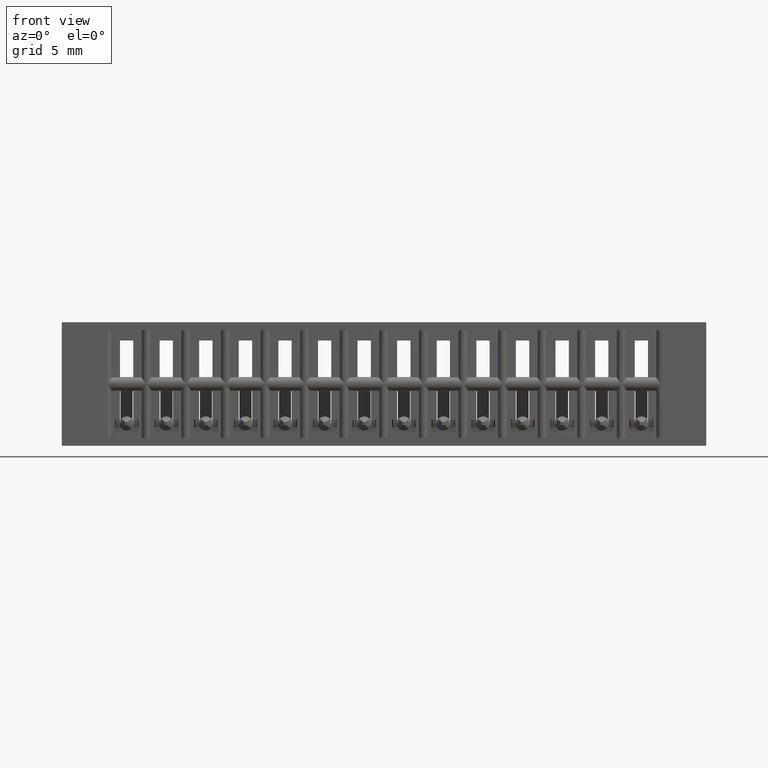
[diagram: clean part render]
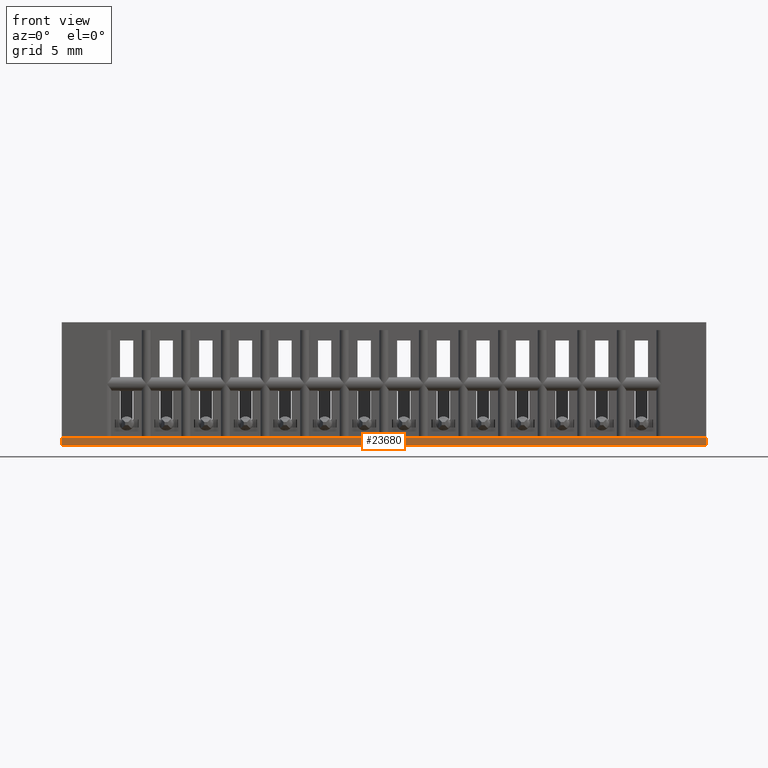
[diagram: same view with one face highlighted and labeled with its STEP entity id]
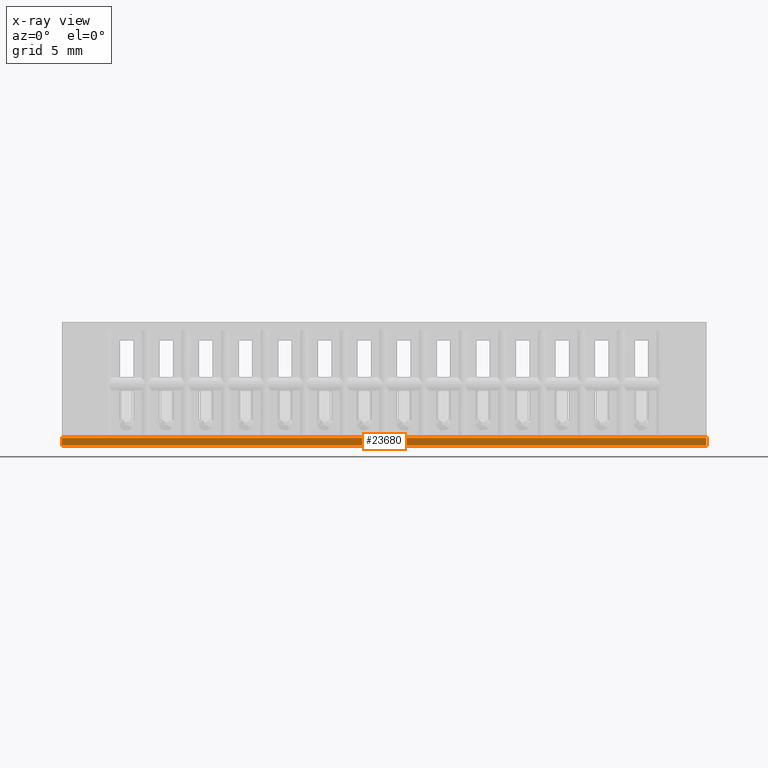
[diagram: x-ray of the same camera — body ghosted, the highlighted face saturated]
A machine part, front view. The second image highlights one B-rep face of the part: STEP entity #23680.
The next image is the same camera in x-ray: the body ghosted, the highlighted face saturated — about 0% of this face is hidden behind the body in this view.
In plain terms, the highlighted planar face has unit normal (0, 1, 0).
Its self-contained STEP definition (entity closure, byte-faithful):
#213 = CARTESIAN_POINT ( 'NONE',  ( 2.035000000000000142, 0.1000000000000000056, -0.3900000000000000133 ) ) ;
#483 = CARTESIAN_POINT ( 'NONE',  ( 2.035000000000000142, 0.1000000000000000056, -0.3649999999999999911 ) ) ;
#1085 = CARTESIAN_POINT ( 'NONE',  ( 2.035000000000000142, 0.1000000000000000056, -0.3900000000000000133 ) ) ;
#1111 = DIRECTION ( 'NONE',  ( 0.0000000000000000000, 1.000000000000000000, 0.0000000000000000000 ) ) ;
#4807 = PLANE ( 'NONE',  #24445 ) ;
#4816 = LINE ( 'NONE', #20304, #9785 ) ;
#6144 = EDGE_LOOP ( 'NONE', ( #23962, #9619, #15190, #15333 ) ) ;
#6340 = DIRECTION ( 'NONE',  ( 0.0000000000000000000, -0.0000000000000000000, 1.000000000000000000 ) ) ;
#8000 = CARTESIAN_POINT ( 'NONE',  ( 0.0000000000000000000, 0.1000000000000000056, -0.3649999999999999911 ) ) ;
#8410 = LINE ( 'NONE', #12210, #11575 ) ;
#8737 = DIRECTION ( 'NONE',  ( -1.000000000000000000, -0.0000000000000000000, -0.0000000000000000000 ) ) ;
#8800 = LINE ( 'NONE', #16543, #24406 ) ;
#9619 = ORIENTED_EDGE ( 'NONE', *, *, #14074, .F. ) ;
#9785 = VECTOR ( 'NONE', #8737, 39.37007874015748143 ) ;
#11575 = VECTOR ( 'NONE', #17699, 39.37007874015748143 ) ;
#11953 = EDGE_CURVE ( 'NONE', #18992, #19490, #17262, .T. ) ;
#12210 = CARTESIAN_POINT ( 'NONE',  ( 2.035000000000000142, 0.1000000000000000056, -0.3900000000000000133 ) ) ;
#12538 = CARTESIAN_POINT ( 'NONE',  ( 2.035000000000000142, 0.1000000000000000056, -0.3900000000000000133 ) ) ;
#12871 = DIRECTION ( 'NONE',  ( -0.0000000000000000000, -0.0000000000000000000, -1.000000000000000000 ) ) ;
#14074 = EDGE_CURVE ( 'NONE', #19490, #21240, #8410, .T. ) ;
#14431 = FACE_OUTER_BOUND ( 'NONE', #6144, .T. ) ;
#15053 = VERTEX_POINT ( 'NONE', #8000 ) ;
#15190 = ORIENTED_EDGE ( 'NONE', *, *, #11953, .F. ) ;
#15333 = ORIENTED_EDGE ( 'NONE', *, *, #20401, .T. ) ;
#16543 = CARTESIAN_POINT ( 'NONE',  ( 0.0000000000000000000, 0.1000000000000000056, -0.3900000000000000133 ) ) ;
#17262 = LINE ( 'NONE', #213, #19623 ) ;
#17441 = CARTESIAN_POINT ( 'NONE',  ( 0.0000000000000000000, 0.1000000000000000056, -0.3900000000000000133 ) ) ;
#17699 = DIRECTION ( 'NONE',  ( -1.000000000000000000, -0.0000000000000000000, -0.0000000000000000000 ) ) ;
#18992 = VERTEX_POINT ( 'NONE', #483 ) ;
#19424 = DIRECTION ( 'NONE',  ( -0.0000000000000000000, -0.0000000000000000000, -1.000000000000000000 ) ) ;
#19490 = VERTEX_POINT ( 'NONE', #1085 ) ;
#19623 = VECTOR ( 'NONE', #19424, 39.37007874015748143 ) ;
#20304 = CARTESIAN_POINT ( 'NONE',  ( 2.035000000000000142, 0.1000000000000000056, -0.3649999999999999911 ) ) ;
#20401 = EDGE_CURVE ( 'NONE', #18992, #15053, #4816, .T. ) ;
#21182 = EDGE_CURVE ( 'NONE', #15053, #21240, #8800, .T. ) ;
#21240 = VERTEX_POINT ( 'NONE', #17441 ) ;
#23680 = ADVANCED_FACE ( 'NONE', ( #14431 ), #4807, .F. ) ;
#23962 = ORIENTED_EDGE ( 'NONE', *, *, #21182, .T. ) ;
#24406 = VECTOR ( 'NONE', #12871, 39.37007874015748143 ) ;
#24445 = AXIS2_PLACEMENT_3D ( 'NONE', #12538, #1111, #6340 ) ;